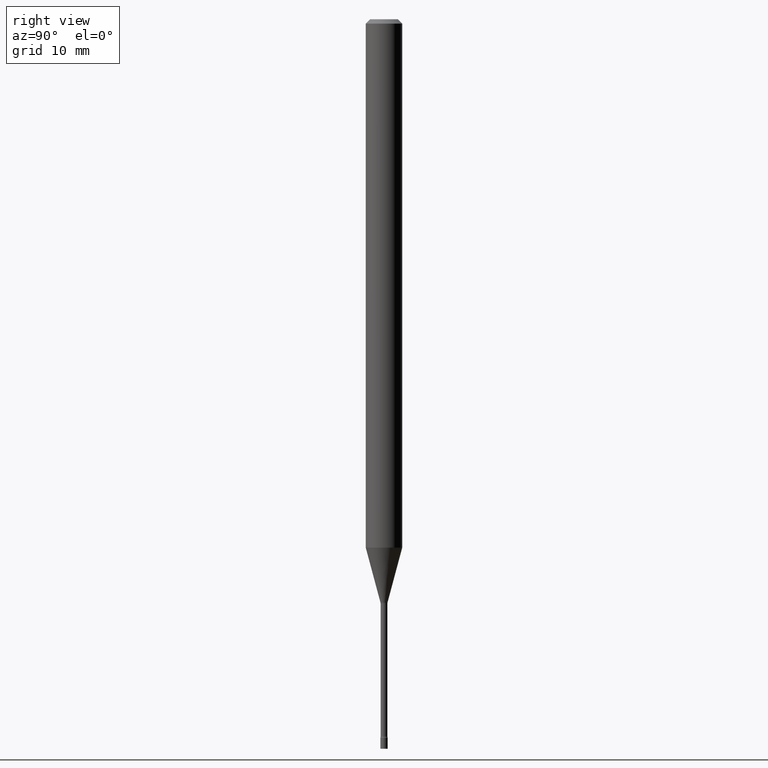
[diagram: clean part render]
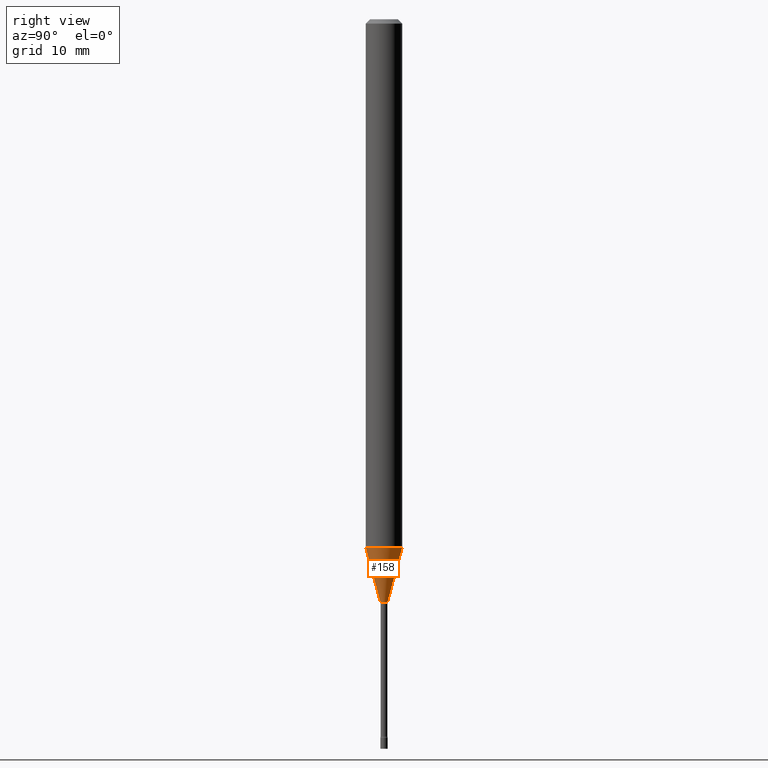
[diagram: same view with one face highlighted and labeled with its STEP entity id]
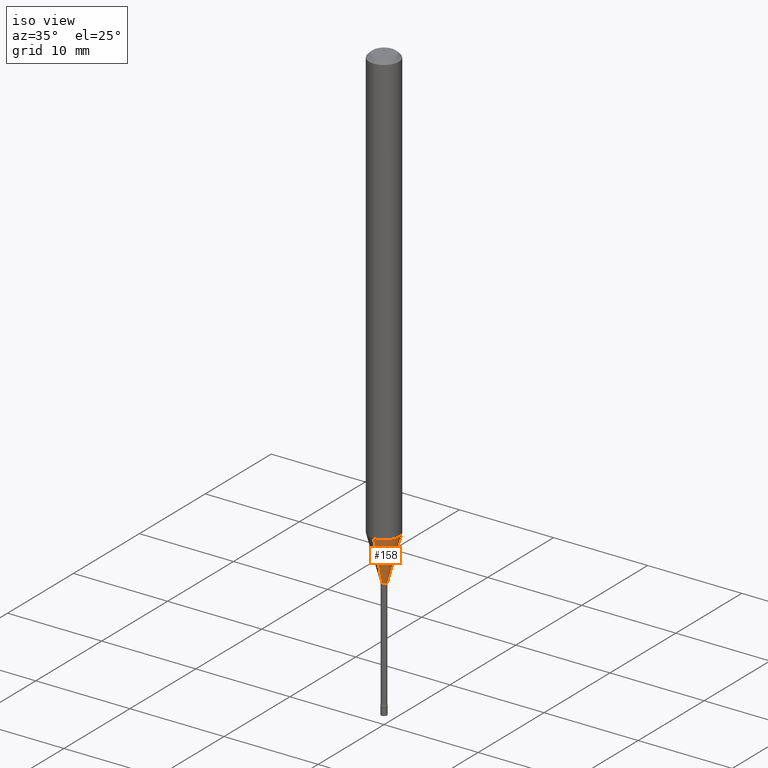
[diagram: same view with one face highlighted and labeled with its STEP entity id]
A machine part, right view. The second image highlights one B-rep face of the part: STEP entity #158.
A second angle (iso view) of the same face is appended — the face is thin or edge-on in the first view.
In plain terms, the highlighted conical surface has half-angle 15 deg.
Its self-contained STEP definition (entity closure, byte-faithful):
#6 = CARTESIAN_POINT ( 'NONE',  ( 2.656048273965337288E-16, 0.01226111260565700654, -1.998092501787273045 ) ) ;
#41 = EDGE_CURVE ( 'NONE', #374, #420, #449, .T. ) ;
#54 = ORIENTED_EDGE ( 'NONE', *, *, #293, .T. ) ;
#58 = VERTEX_POINT ( 'NONE', #383 ) ;
#73 = AXIS2_PLACEMENT_3D ( 'NONE', #323, #234, #272 ) ;
#80 = DIRECTION ( 'NONE',  ( -1.807323732225328167E-15, -0.2588190451025179084, 0.9659258262890690894 ) ) ;
#81 = CARTESIAN_POINT ( 'NONE',  ( 4.427862887806334349E-29, -6.321526066992672815E-15, -1.810598421515879908 ) ) ;
#84 = DIRECTION ( 'NONE',  ( -2.445524548783828743E-29, 3.491401512269146579E-15, 1.000000000000000000 ) ) ;
#97 = CIRCLE ( 'NONE', #290, 0.06250000000000000000 ) ;
#102 = ORIENTED_EDGE ( 'NONE', *, *, #250, .F. ) ;
#120 = CARTESIAN_POINT ( 'NONE',  ( 8.712044494296020912E-17, 0.01226111260565700481, -1.998092501787273045 ) ) ;
#135 = EDGE_LOOP ( 'NONE', ( #260, #54, #151, #102 ) ) ;
#151 = ORIENTED_EDGE ( 'NONE', *, *, #274, .F. ) ;
#154 = LINE ( 'NONE', #279, #437 ) ;
#158 = ADVANCED_FACE ( 'NONE', ( #356 ), #367, .T. ) ;
#174 = CARTESIAN_POINT ( 'NONE',  ( 4.440892098501067924E-16, 0.06249999999999367867, -1.810598421515880130 ) ) ;
#205 = DIRECTION ( 'NONE',  ( 1.839019923739597949E-15, 0.2588190451025246253, 0.9659258262890670910 ) ) ;
#227 = DIRECTION ( 'NONE',  ( -6.982962677686265133E-15, -1.000000000000000000, 0.000000000000000000 ) ) ;
#234 = DIRECTION ( 'NONE',  ( -2.445524548783828743E-29, 3.491401512269146579E-15, 1.000000000000000000 ) ) ;
#250 = EDGE_CURVE ( 'NONE', #374, #58, #154, .T. ) ;
#259 = CARTESIAN_POINT ( 'NONE',  ( 4.886384263861672544E-29, -6.976143182393728222E-15, -1.998092501787273045 ) ) ;
#260 = ORIENTED_EDGE ( 'NONE', *, *, #41, .T. ) ;
#272 = DIRECTION ( 'NONE',  ( -6.982962677686265133E-15, -1.000000000000000000, 0.000000000000000000 ) ) ;
#274 = EDGE_CURVE ( 'NONE', #58, #424, #97, .T. ) ;
#279 = CARTESIAN_POINT ( 'NONE',  ( -8.561889171221131810E-17, -0.01226111260567095892, -1.998092501787273045 ) ) ;
#290 = AXIS2_PLACEMENT_3D ( 'NONE', #81, #84, #365 ) ;
#293 = EDGE_CURVE ( 'NONE', #420, #424, #413, .T. ) ;
#300 = AXIS2_PLACEMENT_3D ( 'NONE', #259, #307, #227 ) ;
#307 = DIRECTION ( 'NONE',  ( -2.445524548783828743E-29, 3.491401512269146579E-15, 1.000000000000000000 ) ) ;
#323 = CARTESIAN_POINT ( 'NONE',  ( 4.886384263861672544E-29, -6.976143182393728222E-15, -1.998092501787273045 ) ) ;
#356 = FACE_OUTER_BOUND ( 'NONE', #135, .T. ) ;
#362 = VECTOR ( 'NONE', #205, 39.37007874015748854 ) ;
#365 = DIRECTION ( 'NONE',  ( -6.982962677686265922E-15, -1.000000000000000000, 4.370956789862821150E-15 ) ) ;
#367 = CONICAL_SURFACE ( 'NONE', #73, 0.01226111260566398187, 0.2617993877991499629 ) ;
#374 = VERTEX_POINT ( 'NONE', #404 ) ;
#383 = CARTESIAN_POINT ( 'NONE',  ( -4.364351673553474439E-16, -0.06250000000000632827, -1.810598421515879464 ) ) ;
#404 = CARTESIAN_POINT ( 'NONE',  ( -8.561889171221131810E-17, -0.01226111260567095892, -1.998092501787273045 ) ) ;
#413 = LINE ( 'NONE', #120, #362 ) ;
#420 = VERTEX_POINT ( 'NONE', #6 ) ;
#424 = VERTEX_POINT ( 'NONE', #174 ) ;
#437 = VECTOR ( 'NONE', #80, 39.37007874015748143 ) ;
#449 = CIRCLE ( 'NONE', #300, 0.01226111260566398187 ) ;